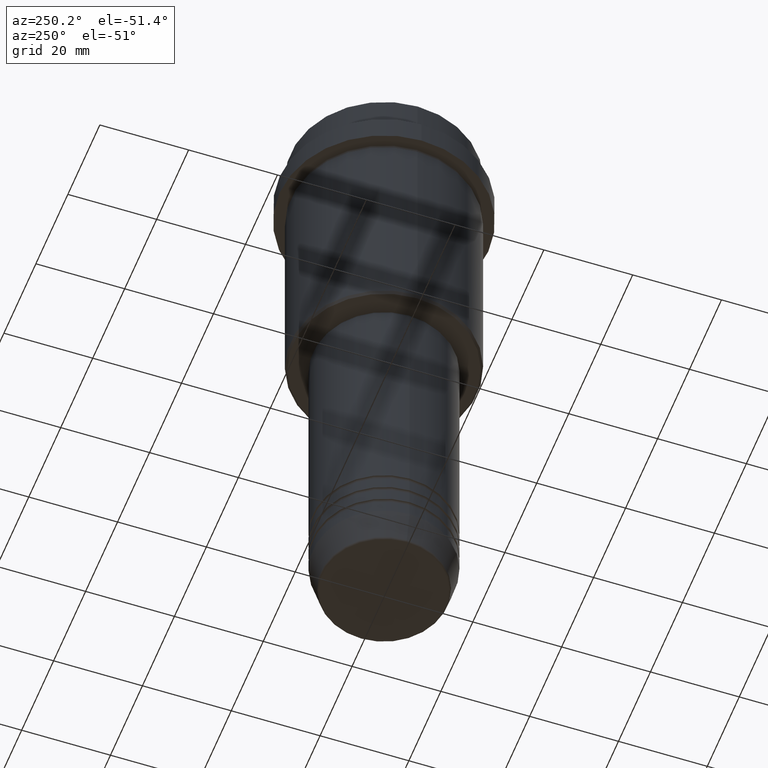
[diagram: clean part render]
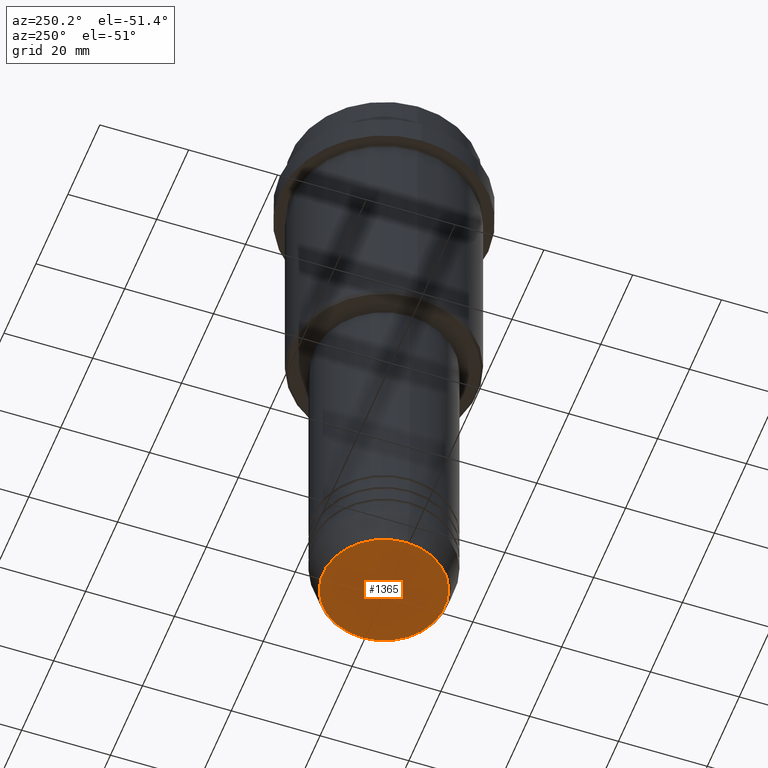
[diagram: same view with one face highlighted and labeled with its STEP entity id]
A machine part, auxiliary view. The second image highlights one B-rep face of the part: STEP entity #1365.
In plain terms, the highlighted planar face has unit normal (0, -0, 1).
Its self-contained STEP definition (entity closure, byte-faithful):
#51 = DIRECTION ( 'NONE',  ( 0.000000000000000000, 0.000000000000000000, -1.000000000000000000 ) ) ;
#65 = DIRECTION ( 'NONE',  ( 1.000000000000000000, 0.000000000000000000, 0.000000000000000000 ) ) ;
#70 = AXIS2_PLACEMENT_3D ( 'NONE', #375, #51, #65 ) ;
#75 = ORIENTED_EDGE ( 'NONE', *, *, #497, .T. ) ;
#301 = VERTEX_POINT ( 'NONE', #1262 ) ;
#327 = EDGE_CURVE ( 'NONE', #1004, #301, #701, .T. ) ;
#375 = CARTESIAN_POINT ( 'NONE',  ( 0.000000000000000000, 0.000000000000000000, -140.0000000000000000 ) ) ;
#497 = EDGE_CURVE ( 'NONE', #301, #1004, #843, .T. ) ;
#511 = DIRECTION ( 'NONE',  ( 1.000000000000000000, 0.000000000000000000, 0.000000000000000000 ) ) ;
#529 = FACE_OUTER_BOUND ( 'NONE', #846, .T. ) ;
#615 = DIRECTION ( 'NONE',  ( 0.000000000000000000, 0.000000000000000000, -1.000000000000000000 ) ) ;
#701 = CIRCLE ( 'NONE', #1211, 13.74069215899265828 ) ;
#747 = DIRECTION ( 'NONE',  ( 0.000000000000000000, -0.000000000000000000, 1.000000000000000000 ) ) ;
#835 = CARTESIAN_POINT ( 'NONE',  ( 0.000000000000000000, 0.000000000000000000, -140.0000000000000000 ) ) ;
#843 = CIRCLE ( 'NONE', #70, 13.74069215899265828 ) ;
#846 = EDGE_LOOP ( 'NONE', ( #1216, #75 ) ) ;
#951 = CARTESIAN_POINT ( 'NONE',  ( 13.74069215899265828, 0.000000000000000000, -140.0000000000000000 ) ) ;
#1004 = VERTEX_POINT ( 'NONE', #951 ) ;
#1060 = PLANE ( 'NONE',  #1186 ) ;
#1078 = CARTESIAN_POINT ( 'NONE',  ( 0.000000000000000000, 0.000000000000000000, -140.0000000000000000 ) ) ;
#1186 = AXIS2_PLACEMENT_3D ( 'NONE', #1078, #747, #1299 ) ;
#1211 = AXIS2_PLACEMENT_3D ( 'NONE', #835, #615, #511 ) ;
#1216 = ORIENTED_EDGE ( 'NONE', *, *, #327, .T. ) ;
#1262 = CARTESIAN_POINT ( 'NONE',  ( -13.74069215899265828, 1.712322416342415986E-15, -140.0000000000000000 ) ) ;
#1299 = DIRECTION ( 'NONE',  ( 1.000000000000000000, 0.000000000000000000, 0.000000000000000000 ) ) ;
#1365 = ADVANCED_FACE ( 'NONE', ( #529 ), #1060, .F. ) ;